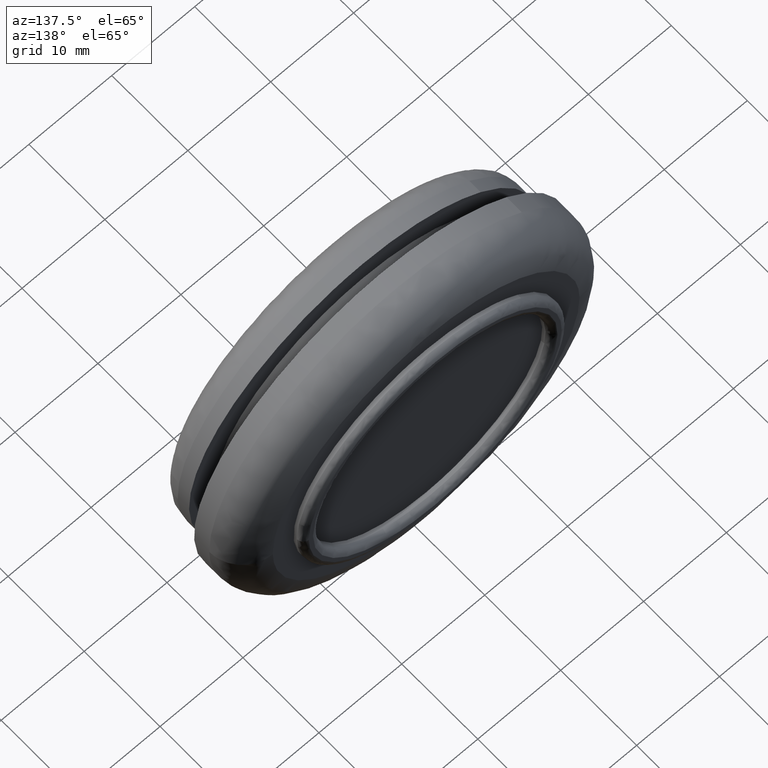
[diagram: clean part render]
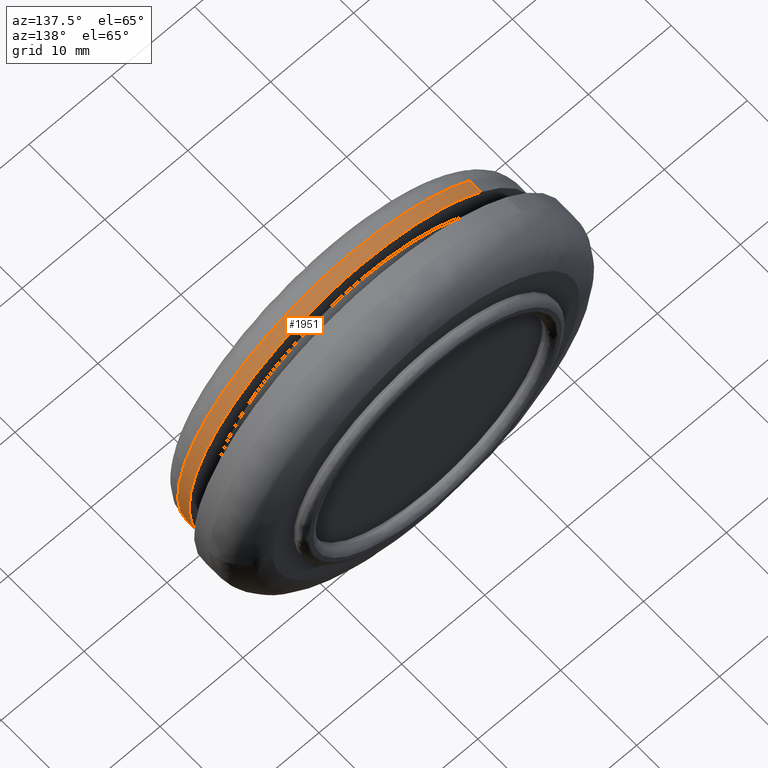
[diagram: same view with one face highlighted and labeled with its STEP entity id]
A machine part, auxiliary view. The second image highlights one B-rep face of the part: STEP entity #1951.
In plain terms, the highlighted face is a freeform B-spline surface patch.
Its self-contained STEP definition (entity closure, byte-faithful):
#1556=CARTESIAN_POINT('',(14.187393369123880,2.499999999973169,-15.482824980917981));
#1557=VERTEX_POINT('',#1556);
#1571=CARTESIAN_POINT('',(20.993367974949070,2.499999999943958,-0.527732004319054));
#1572=VERTEX_POINT('',#1571);
#1573=CARTESIAN_POINT('',(14.187393369123882,2.499999999973169,-15.482824980917986));
#1574=CARTESIAN_POINT('',(20.769032830120036,2.499999999956172,-9.451864341500892));
#1575=CARTESIAN_POINT('',(20.993367974949077,2.499999999943958,-0.527732004319054));
#1583=(BOUNDED_CURVE()B_SPLINE_CURVE(2,(#1573,#1574,#1575),.UNSPECIFIED.,.F.,.U.)B_SPLINE_CURVE_WITH_KNOTS((3,3),(0.118415199423554,0.245579891769733),.UNSPECIFIED.)CURVE()GEOMETRIC_REPRESENTATION_ITEM()RATIONAL_B_SPLINE_CURVE((0.853959782030383,0.846111610856156,0.989826157681407))REPRESENTATION_ITEM(''));
#1584=EDGE_CURVE('',#1557,#1572,#1583,.T.);
#1635=CARTESIAN_POINT('',(0.0,2.500000000000000,21.0));
#1636=VERTEX_POINT('',#1635);
#1637=CARTESIAN_POINT('',(20.993367974949077,2.499999999943958,-0.527732004319054));
#1638=CARTESIAN_POINT('',(21.000000000000004,2.499999999944301,-0.263907674595456));
#1639=CARTESIAN_POINT('',(21.0,2.499999999944653,1.324260E-016));
#1640=CARTESIAN_POINT('',(20.999999999999989,2.499999999972675,21.000000000000007));
#1641=CARTESIAN_POINT('',(0.0,2.500000000000000,21.0));
#1649=(BOUNDED_CURVE()B_SPLINE_CURVE(2,(#1637,#1638,#1639,#1640,#1641),.UNSPECIFIED.,.F.,.U.)B_SPLINE_CURVE_WITH_KNOTS((3,2,3),(0.245579891769733,0.250000000000000,0.500000000000000),.UNSPECIFIED.)CURVE()GEOMETRIC_REPRESENTATION_ITEM()RATIONAL_B_SPLINE_CURVE((0.989826157681407,0.994821521091733,1.0,0.707106781186547,1.0))REPRESENTATION_ITEM(''));
#1650=EDGE_CURVE('',#1572,#1636,#1649,.T.);
#1652=CARTESIAN_POINT('',(-14.187393369123880,2.499999999973169,15.482824980917989));
#1653=VERTEX_POINT('',#1652);
#1654=CARTESIAN_POINT('',(0.0,2.500000000000000,21.0));
#1655=CARTESIAN_POINT('',(-8.166452595363269,2.499999999988826,21.000000000000004));
#1656=CARTESIAN_POINT('',(-14.187393369123896,2.499999999973225,15.482824980918023));
#1664=(BOUNDED_CURVE()B_SPLINE_CURVE(2,(#1654,#1655,#1656),.UNSPECIFIED.,.F.,.U.)B_SPLINE_CURVE_WITH_KNOTS((3,3),(0.500000000000000,0.618415199423554),.UNSPECIFIED.)CURVE()GEOMETRIC_REPRESENTATION_ITEM()RATIONAL_B_SPLINE_CURVE((1.0,0.861267964337594,0.853959782030383))REPRESENTATION_ITEM(''));
#1665=EDGE_CURVE('',#1636,#1653,#1664,.T.);
#1884=CARTESIAN_POINT('',(14.187394359928859,4.037500000001401,-15.482824073012599));
#1885=CARTESIAN_POINT('',(29.670218432941464,4.037500000001402,-1.295429713083735));
#1886=CARTESIAN_POINT('',(15.482824073012599,4.037500000001401,14.187394359928859));
#1887=CARTESIAN_POINT('',(1.295429713083735,4.037500000001402,29.670218432941464));
#1888=CARTESIAN_POINT('',(-14.187394359928859,4.037500000001401,15.482824073012599));
#1889=CARTESIAN_POINT('',(14.187394359928859,2.461562499942522,-15.482824073012599));
#1890=CARTESIAN_POINT('',(29.670218432941464,2.461562499942522,-1.295429713083735));
#1891=CARTESIAN_POINT('',(15.482824073012599,2.461562499942522,14.187394359928859));
#1892=CARTESIAN_POINT('',(1.295429713083735,2.461562499942522,29.670218432941464));
#1893=CARTESIAN_POINT('',(-14.187394359928859,2.461562499942522,15.482824073012599));
#1901=(BOUNDED_SURFACE()B_SPLINE_SURFACE(2,1,((#1884,#1889),(#1885,#1890),(#1886,#1891),(#1887,#1892),(#1888,#1893)),.UNSPECIFIED.,.F.,.F.,.U.)B_SPLINE_SURFACE_WITH_KNOTS((3,2,3),(2,2),(0.0,34.793939239339970,69.587878478679940),(0.0,1.0),.UNSPECIFIED.)GEOMETRIC_REPRESENTATION_ITEM()RATIONAL_B_SPLINE_SURFACE(((1.0,1.0),(0.707106781186548,0.707106781186548),(1.0,1.0),(0.707106781186548,0.707106781186548),(1.0,1.0)))REPRESENTATION_ITEM('')SURFACE());
#1902=ORIENTED_EDGE('',*,*,#1584,.F.);
#1903=CARTESIAN_POINT('',(14.187393352190931,4.0,-15.482824996434170));
#1904=VERTEX_POINT('',#1903);
#1905=CARTESIAN_POINT('',(14.187393352190931,4.0,-15.482824996434170));
#1906=CARTESIAN_POINT('',(14.187393369123880,2.499999999973169,-15.482824980917981));
#1907=QUASI_UNIFORM_CURVE('',1,(#1905,#1906),.UNSPECIFIED.,.F.,.U.);
#1908=EDGE_CURVE('',#1904,#1557,#1907,.T.);
#1909=ORIENTED_EDGE('',*,*,#1908,.F.);
#1910=CARTESIAN_POINT('',(0.0,4.0,21.0));
#1911=VERTEX_POINT('',#1910);
#1912=CARTESIAN_POINT('',(14.187393352190956,4.000000000000001,-15.482824996434212));
#1913=CARTESIAN_POINT('',(20.999999999999993,4.0,-9.240221964463116));
#1914=CARTESIAN_POINT('',(21.0,4.0,-3.061516E-016));
#1915=CARTESIAN_POINT('',(21.000000000000007,4.0,21.000000000000007));
#1916=CARTESIAN_POINT('',(0.0,4.0,21.0));
#1924=(BOUNDED_CURVE()B_SPLINE_CURVE(2,(#1912,#1913,#1914,#1915,#1916),.UNSPECIFIED.,.F.,.U.)B_SPLINE_CURVE_WITH_KNOTS((3,2,3),(0.118415199258455,0.250000000000000,0.500000000000000),.UNSPECIFIED.)CURVE()GEOMETRIC_REPRESENTATION_ITEM()RATIONAL_B_SPLINE_CURVE((0.853959782050761,0.845838816655528,1.0,0.707106781186547,1.0))REPRESENTATION_ITEM(''));
#1925=EDGE_CURVE('',#1904,#1911,#1924,.T.);
#1926=ORIENTED_EDGE('',*,*,#1925,.T.);
#1927=CARTESIAN_POINT('',(-14.187393352190920,4.0,15.482824996434170));
#1928=VERTEX_POINT('',#1927);
#1929=CARTESIAN_POINT('',(0.0,4.0,21.0));
#1930=CARTESIAN_POINT('',(-8.166452582143235,4.0,21.0));
#1931=CARTESIAN_POINT('',(-14.187393352190952,4.000000000000001,15.482824996434207));
#1939=(BOUNDED_CURVE()B_SPLINE_CURVE(2,(#1929,#1930,#1931),.UNSPECIFIED.,.F.,.U.)B_SPLINE_CURVE_WITH_KNOTS((3,3),(0.500000000000000,0.618415199258455),.UNSPECIFIED.)CURVE()GEOMETRIC_REPRESENTATION_ITEM()RATIONAL_B_SPLINE_CURVE((1.0,0.861267964531020,0.853959782050762))REPRESENTATION_ITEM(''));
#1940=EDGE_CURVE('',#1911,#1928,#1939,.T.);
#1941=ORIENTED_EDGE('',*,*,#1940,.T.);
#1942=CARTESIAN_POINT('',(-14.187393352190920,4.0,15.482824996434170));
#1943=CARTESIAN_POINT('',(-14.187393369123880,2.499999999973169,15.482824980917989));
#1944=QUASI_UNIFORM_CURVE('',1,(#1942,#1943),.UNSPECIFIED.,.F.,.U.);
#1945=EDGE_CURVE('',#1928,#1653,#1944,.T.);
#1946=ORIENTED_EDGE('',*,*,#1945,.T.);
#1947=ORIENTED_EDGE('',*,*,#1665,.F.);
#1948=ORIENTED_EDGE('',*,*,#1650,.F.);
#1949=EDGE_LOOP('',(#1902,#1909,#1926,#1941,#1946,#1947,#1948));
#1950=FACE_OUTER_BOUND('',#1949,.T.);
#1951=ADVANCED_FACE('',(#1950),#1901,.T.);